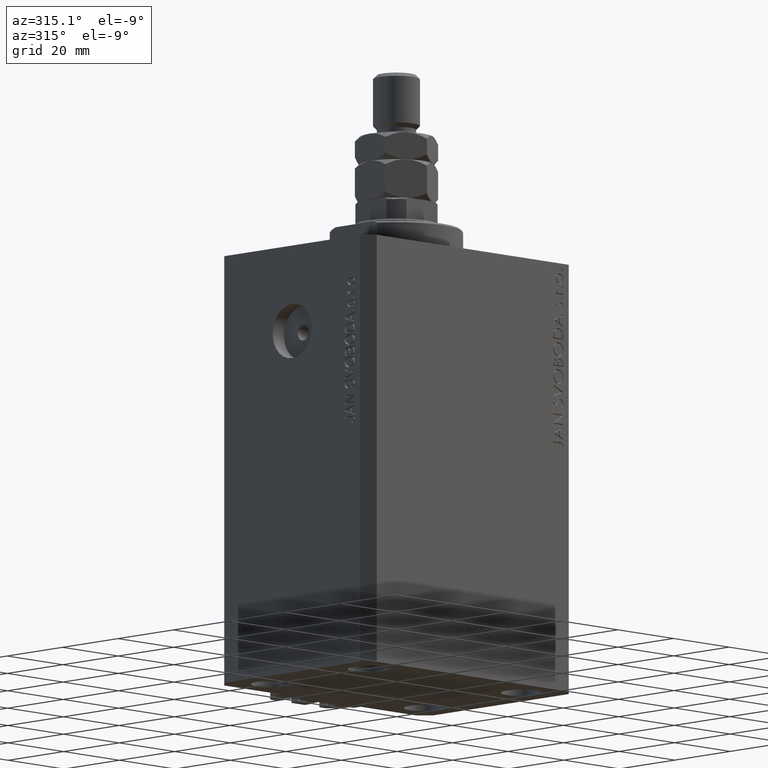
[diagram: clean part render]
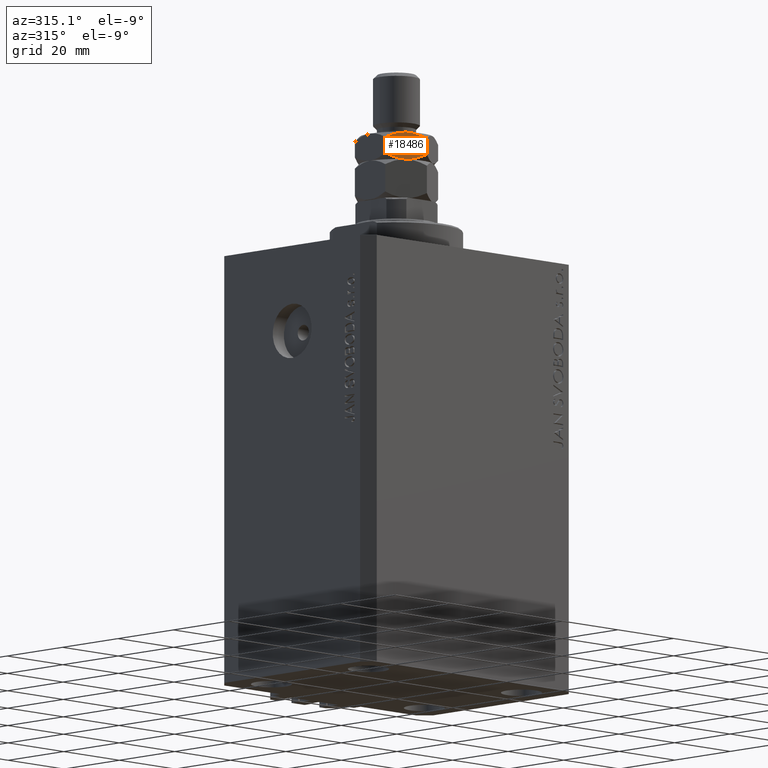
[diagram: same view with one face highlighted and labeled with its STEP entity id]
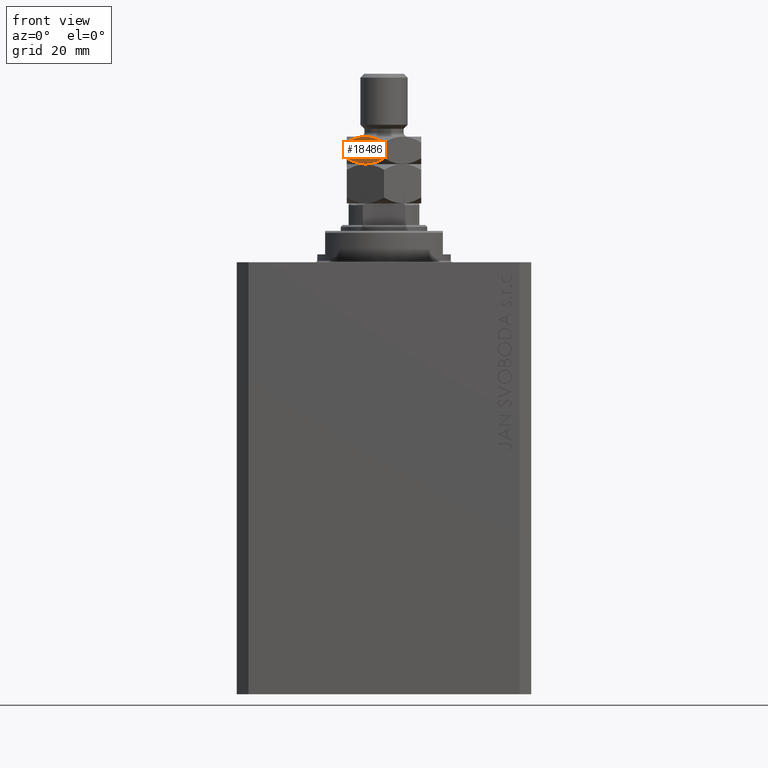
[diagram: same view with one face highlighted and labeled with its STEP entity id]
A machine part, auxiliary view. The second image highlights one B-rep face of the part: STEP entity #18486.
A second angle (front view) of the same face is appended — the face is thin or edge-on in the first view.
In plain terms, the highlighted planar face has unit normal (0.5, 0.866, 0).
Its self-contained STEP definition (entity closure, byte-faithful):
#538 = CARTESIAN_POINT ( 'NONE',  ( -8.755994125639031012, -5.914379549142408266, 11.04010312276182582 ) ) ;
#2763 = ORIENTED_EDGE ( 'NONE', *, *, #24281, .F. ) ;
#4178 = CARTESIAN_POINT ( 'NONE',  ( -0.7440058743609645475, -10.54010312276192174, 15.95989687723816886 ) ) ;
#4714 = CARTESIAN_POINT ( 'NONE',  ( -6.809745054052672053, -7.038046974532854883, 16.71653786156880628 ) ) ;
#5907 = EDGE_CURVE ( 'NONE', #20402, #21163, #11070, .T. ) ;
#6324 = B_SPLINE_CURVE_WITH_KNOTS ( 'NONE', 3,
 ( #46399, #27655, #42693, #4714, #8891, #16557, #12850, #42936 ),
 .UNSPECIFIED., .F., .F.,
 ( 4, 2, 2, 4 ),
 ( 2.544312669948822529E-07, 0.002843014744722343733, 0.004264394901450017407, 0.005685775058177691514 ),
 .UNSPECIFIED. ) ;
#6497 = EDGE_CURVE ( 'NONE', #48560, #20402, #6324, .T. ) ;
#6645 = EDGE_CURVE ( 'NONE', #21163, #11473, #44659, .T. ) ;
#8098 = PLANE ( 'NONE',  #27717 ) ;
#8177 = CARTESIAN_POINT ( 'NONE',  ( -6.388382028668170953, -7.281321030665152350, 10.14587561577547170 ) ) ;
#8891 = CARTESIAN_POINT ( 'NONE',  ( -6.408273631871773901, -7.269836608200939132, 16.82025814528796559 ) ) ;
#9384 = CARTESIAN_POINT ( 'NONE',  ( -1.506594318812380928, -10.09982247907699637, 10.67417488247128077 ) ) ;
#9778 = VECTOR ( 'NONE', #33788, 1000.000000000000000 ) ;
#10118 = CARTESIAN_POINT ( 'NONE',  ( -3.091726368128223434, -9.184646063703393537, 10.17974185471203441 ) ) ;
#11070 = B_SPLINE_CURVE_WITH_KNOTS ( 'NONE', 3,
 ( #25896, #37964, #48834, #22445, #4178, #30573 ),
 .UNSPECIFIED., .F., .F.,
 ( 4, 2, 4 ),
 ( 0.005685775058177691514, 0.008508623398180323663, 0.01133147173818295494 ),
 .UNSPECIFIED. ) ;
#11093 = B_SPLINE_CURVE_WITH_KNOTS ( 'NONE', 3,
 ( #35526, #20975, #9384, #13835, #10118, #40206, #21221, #43683 ),
 .UNSPECIFIED., .F., .F.,
 ( 4, 2, 2, 4 ),
 ( 2.544312669922086463E-07, 0.002843014744722338963, 0.004264394901450012203, 0.005685775058177687177 ),
 .UNSPECIFIED. ) ;
#11473 = VERTEX_POINT ( 'NONE', #14056 ) ;
#12850 = CARTESIAN_POINT ( 'NONE',  ( -5.166021702288275286, -7.987051094147301633, 16.99999999999999645 ) ) ;
#13236 = VERTEX_POINT ( 'NONE', #23227 ) ;
#13835 = CARTESIAN_POINT ( 'NONE',  ( -2.690254945947324394, -9.416435697371476010, 10.28346213843119017 ) ) ;
#14056 = CARTESIAN_POINT ( 'NONE',  ( -4.596422226180432768E-16, -10.96965511460288845, 11.46965511460288667 ) ) ;
#14687 = DIRECTION ( 'NONE',  ( -0.000000000000000000, -0.000000000000000000, -1.000000000000000000 ) ) ;
#15363 = CARTESIAN_POINT ( 'NONE',  ( -5.576215397865952994, -7.750225653585648189, 10.00000000000000355 ) ) ;
#16073 = B_SPLINE_CURVE_WITH_KNOTS ( 'NONE', 3,
 ( #38503, #15363, #8177, #33844, #538, #22742 ),
 .UNSPECIFIED., .F., .F.,
 ( 4, 2, 4 ),
 ( 0.005685775058177687177, 0.008508623398180321928, 0.01133147173818295494 ),
 .UNSPECIFIED. ) ;
#16557 = CARTESIAN_POINT ( 'NONE',  ( -5.588267949974992099, -7.743267109381072544, 16.96229423126699842 ) ) ;
#17401 = LINE ( 'NONE', #32434, #24275 ) ;
#18486 = ADVANCED_FACE ( 'NONE', ( #41899 ), #8098, .F. ) ;
#18924 = CARTESIAN_POINT ( 'NONE',  ( -7.004548541184263297E-16, -10.96965511460288845, 15.53034488539711333 ) ) ;
#20402 = VERTEX_POINT ( 'NONE', #29536 ) ;
#20481 = VERTEX_POINT ( 'NONE', #21630 ) ;
#20975 = CARTESIAN_POINT ( 'NONE',  ( -0.7448681452486590748, -10.53960529043279415, 11.03960529043279948 ) ) ;
#21163 = VERTEX_POINT ( 'NONE', #18924 ) ;
#21221 = CARTESIAN_POINT ( 'NONE',  ( -4.333978297711722050, -8.467431577757025707, 10.00000000000000000 ) ) ;
#21630 = CARTESIAN_POINT ( 'NONE',  ( -9.499999999999998224, -5.484827557301444223, 11.46965511460288667 ) ) ;
#22445 = CARTESIAN_POINT ( 'NONE',  ( -1.509821400858456952, -10.09795932238900029, 16.32836303054873284 ) ) ;
#22742 = CARTESIAN_POINT ( 'NONE',  ( -9.499999999999998224, -5.484827557301444223, 11.46965511460288667 ) ) ;
#23150 = CARTESIAN_POINT ( 'NONE',  ( -9.499999999999998224, -5.484827557301444223, 17.00000000000000000 ) ) ;
#23227 = CARTESIAN_POINT ( 'NONE',  ( -4.749999999999998224, -8.227241335952168555, 10.00000000000000000 ) ) ;
#23660 = ORIENTED_EDGE ( 'NONE', *, *, #5907, .F. ) ;
#24275 = VECTOR ( 'NONE', #14687, 1000.000000000000000 ) ;
#24281 = EDGE_CURVE ( 'NONE', #13236, #20481, #16073, .T. ) ;
#24445 = EDGE_LOOP ( 'NONE', ( #32087, #24626, #23660, #30357, #33620, #2763 ) ) ;
#24626 = ORIENTED_EDGE ( 'NONE', *, *, #6645, .F. ) ;
#24830 = DIRECTION ( 'NONE',  ( -0.8660254037844385966, 0.5000000000000000000, 0.000000000000000000 ) ) ;
#25896 = CARTESIAN_POINT ( 'NONE',  ( -4.749999999999999112, -8.227241335952165002, 17.00000000000000000 ) ) ;
#27655 = CARTESIAN_POINT ( 'NONE',  ( -8.755131854751338594, -5.914877381471535855, 15.96039470956720230 ) ) ;
#27717 = AXIS2_PLACEMENT_3D ( 'NONE', #23150, #38426, #24830 ) ;
#29536 = CARTESIAN_POINT ( 'NONE',  ( -4.749999999999999112, -8.227241335952165002, 17.00000000000000000 ) ) ;
#29844 = CARTESIAN_POINT ( 'NONE',  ( -9.499999999999998224, -5.484827557301444223, 15.53034488539711511 ) ) ;
#30357 = ORIENTED_EDGE ( 'NONE', *, *, #6497, .F. ) ;
#30573 = CARTESIAN_POINT ( 'NONE',  ( -7.004548541184263297E-16, -10.96965511460288845, 15.53034488539711333 ) ) ;
#32087 = ORIENTED_EDGE ( 'NONE', *, *, #34802, .F. ) ;
#32434 = CARTESIAN_POINT ( 'NONE',  ( -9.499999999999998224, -5.484827557301444223, 17.00000000000000000 ) ) ;
#33498 = EDGE_CURVE ( 'NONE', #48560, #20481, #17401, .T. ) ;
#33620 = ORIENTED_EDGE ( 'NONE', *, *, #33498, .T. ) ;
#33788 = DIRECTION ( 'NONE',  ( -0.000000000000000000, -0.000000000000000000, -1.000000000000000000 ) ) ;
#33844 = CARTESIAN_POINT ( 'NONE',  ( -7.990178599141541049, -6.356523349515330601, 10.67163696945126894 ) ) ;
#34802 = EDGE_CURVE ( 'NONE', #11473, #13236, #11093, .T. ) ;
#35526 = CARTESIAN_POINT ( 'NONE',  ( -4.596422226180432768E-16, -10.96965511460288845, 11.46965511460288667 ) ) ;
#37964 = CARTESIAN_POINT ( 'NONE',  ( -3.923784602134048782, -8.704257018318685368, 16.99999999999999645 ) ) ;
#38426 = DIRECTION ( 'NONE',  ( 0.5000000000000001110, 0.8660254037844387076, -0.000000000000000000 ) ) ;
#38503 = CARTESIAN_POINT ( 'NONE',  ( -4.749999999999998224, -8.227241335952168555, 10.00000000000000000 ) ) ;
#40206 = CARTESIAN_POINT ( 'NONE',  ( -3.911732050025006124, -8.711215562523266343, 10.03770576873299980 ) ) ;
#41672 = CARTESIAN_POINT ( 'NONE',  ( -8.062368721906535533E-16, -10.96965511460288845, 17.00000000000000000 ) ) ;
#41899 = FACE_OUTER_BOUND ( 'NONE', #24445, .T. ) ;
#42693 = CARTESIAN_POINT ( 'NONE',  ( -7.993405681187615741, -6.354660192827333631, 16.32582511752871923 ) ) ;
#42936 = CARTESIAN_POINT ( 'NONE',  ( -4.749999999999999112, -8.227241335952165002, 17.00000000000000000 ) ) ;
#43683 = CARTESIAN_POINT ( 'NONE',  ( -4.749999999999998224, -8.227241335952168555, 10.00000000000000000 ) ) ;
#44659 = LINE ( 'NONE', #41672, #9778 ) ;
#46399 = CARTESIAN_POINT ( 'NONE',  ( -9.499999999999998224, -5.484827557301444223, 15.53034488539711511 ) ) ;
#48560 = VERTEX_POINT ( 'NONE', #29844 ) ;
#48834 = CARTESIAN_POINT ( 'NONE',  ( -3.111617971331826382, -9.173161641239182984, 16.85412438422453718 ) ) ;